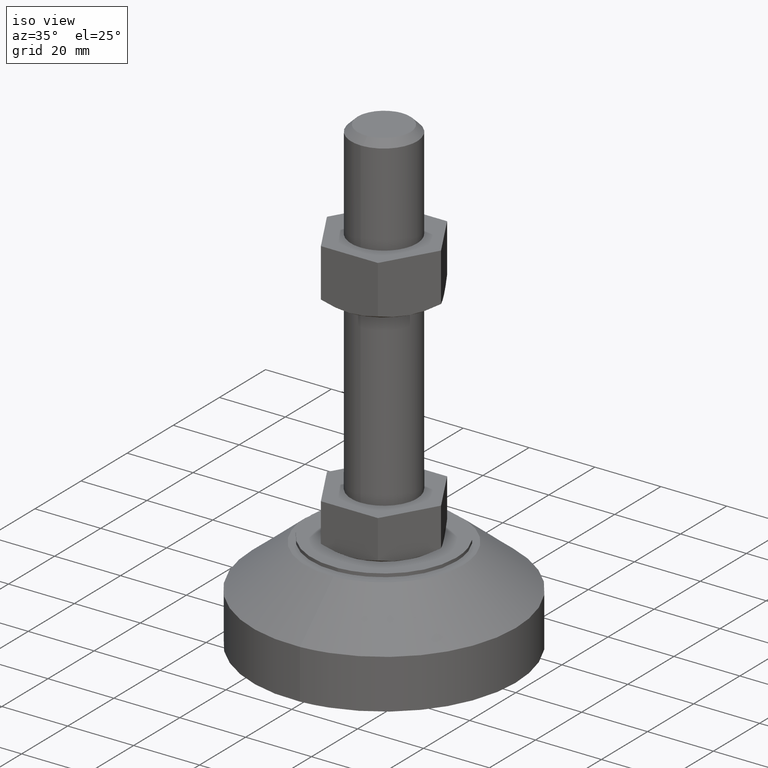
[diagram: clean part render]
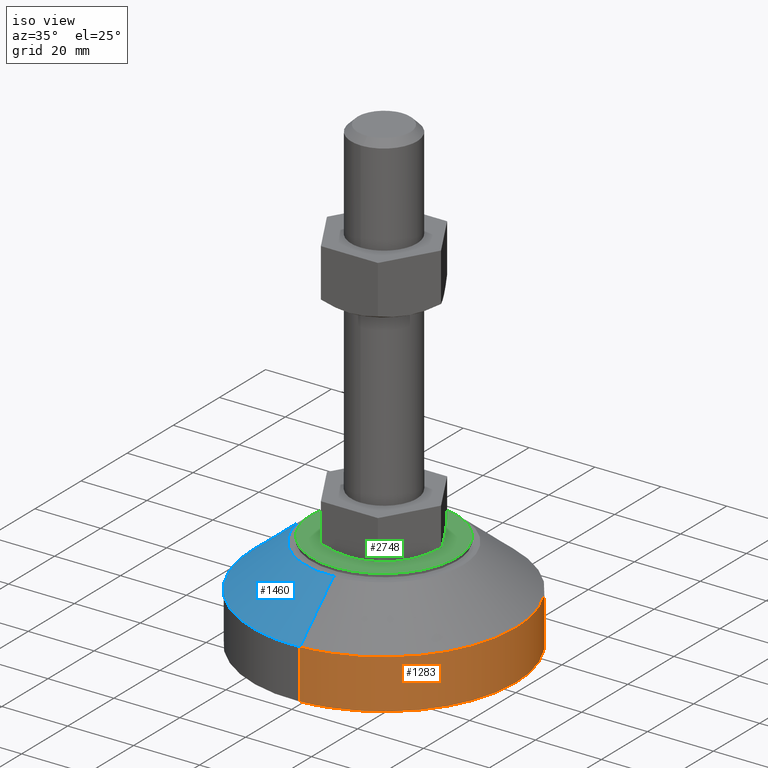
[diagram: same view with three faces highlighted in distinct colors, each labeled with its STEP entity id]
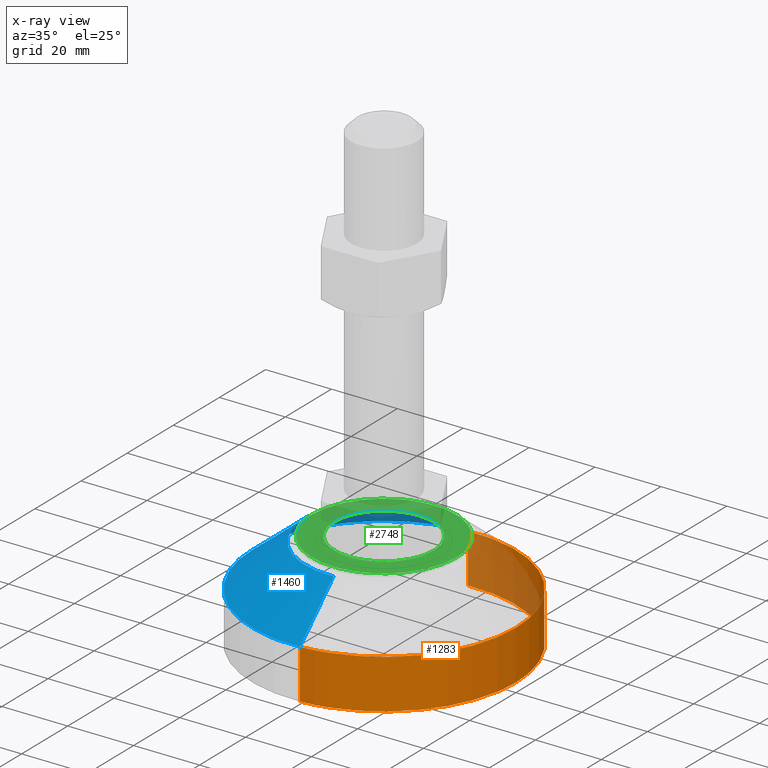
[diagram: x-ray of the same camera — body ghosted, the three highlighted faces saturated]
A machine part, iso view with three faces highlighted in distinct colors.
The next image is the same camera in x-ray (body ghosted, the three faces saturated) — at least one of them is partly hidden behind the body in this view.
Their STEP definitions:

[orange] entity #1283 — the highlighted face is a freeform B-spline surface patch.
#1146=CARTESIAN_POINT('',(-2.441919508004728,39.925393286928767,-8.504308E-014));
#1147=VERTEX_POINT('',#1146);
#1161=CARTESIAN_POINT('',(40.000000000000007,0.0,0.0));
#1162=VERTEX_POINT('',#1161);
#1163=CARTESIAN_POINT('',(-2.441919508004728,39.925393286928767,-8.504308E-014));
#1164=CARTESIAN_POINT('',(-1.222099464303053,39.999999999993989,-8.382098E-014));
#1165=CARTESIAN_POINT('',(3.796339E-013,39.999999999994081,-8.252184E-014));
#1166=CARTESIAN_POINT('',(40.000000000000192,39.999999999997122,-4.000029E-014));
#1167=CARTESIAN_POINT('',(40.000000000000007,0.0,0.0));
#1175=(BOUNDED_CURVE()B_SPLINE_CURVE(2,(#1163,#1164,#1165,#1166,#1167),.UNSPECIFIED.,.F.,.U.)B_SPLINE_CURVE_WITH_KNOTS((3,2,3),(0.239333057637219,0.250000000000000,0.500000000000000),.UNSPECIFIED.)CURVE()GEOMETRIC_REPRESENTATION_ITEM()RATIONAL_B_SPLINE_CURVE((0.976072246123469,0.987502899665870,1.0,0.707106781186548,1.0))REPRESENTATION_ITEM(''));
#1176=EDGE_CURVE('',#1147,#1162,#1175,.T.);
#1178=CARTESIAN_POINT('',(2.441919508004760,-39.925393286928767,-8.593126E-014));
#1179=VERTEX_POINT('',#1178);
#1180=CARTESIAN_POINT('',(40.000000000000007,0.0,0.0));
#1181=CARTESIAN_POINT('',(39.999999999999815,-37.628263518478377,-4.296563E-014));
#1182=CARTESIAN_POINT('',(2.441919508004760,-39.925393286928767,-8.593126E-014));
#1190=(BOUNDED_CURVE()B_SPLINE_CURVE(2,(#1180,#1181,#1182),.UNSPECIFIED.,.F.,.U.)B_SPLINE_CURVE_WITH_KNOTS((3,3),(0.500000000000000,0.739333057637219),.UNSPECIFIED.)CURVE()GEOMETRIC_REPRESENTATION_ITEM()RATIONAL_B_SPLINE_CURVE((1.0,0.719603881520678,0.976072246123469))REPRESENTATION_ITEM(''));
#1191=EDGE_CURVE('',#1162,#1179,#1190,.T.);
#1217=CARTESIAN_POINT('',(-2.441941581394265,39.925391936874668,15.375000000000000));
#1218=CARTESIAN_POINT('',(37.483450355480407,42.367333518268957,15.375000000000002));
#1219=CARTESIAN_POINT('',(39.925391936874682,2.441941581394279,15.375000000000000));
#1220=CARTESIAN_POINT('',(42.367333518268971,-37.483450355480386,15.375000000000002));
#1221=CARTESIAN_POINT('',(2.441941581394294,-39.925391936874668,15.375000000000000));
#1222=CARTESIAN_POINT('',(-2.441941581394265,39.925391936874668,-0.384375000000087));
#1223=CARTESIAN_POINT('',(37.483450355480407,42.367333518268957,-0.384375000000087));
#1224=CARTESIAN_POINT('',(39.925391936874682,2.441941581394279,-0.384375000000087));
#1225=CARTESIAN_POINT('',(42.367333518268971,-37.483450355480386,-0.384375000000087));
#1226=CARTESIAN_POINT('',(2.441941581394294,-39.925391936874668,-0.384375000000087));
#1234=(BOUNDED_SURFACE()B_SPLINE_SURFACE(2,1,((#1217,#1222),(#1218,#1223),(#1219,#1224),(#1220,#1225),(#1221,#1226)),.UNSPECIFIED.,.F.,.F.,.U.)B_SPLINE_SURFACE_WITH_KNOTS((3,2,3),(2,2),(0.0,66.274169979695188,132.548339959390400),(0.0,15.759375000000089),.UNSPECIFIED.)GEOMETRIC_REPRESENTATION_ITEM()RATIONAL_B_SPLINE_SURFACE(((1.0,1.0),(0.707106781186548,0.707106781186548),(1.0,1.0),(0.707106781186548,0.707106781186548),(1.0,1.0)))REPRESENTATION_ITEM('')SURFACE());
#1235=CARTESIAN_POINT('',(-2.441941581420718,39.925391936876743,14.999999999994490));
#1236=VERTEX_POINT('',#1235);
#1237=CARTESIAN_POINT('',(-2.441941581420718,39.925391936876743,14.999999999994490));
#1238=CARTESIAN_POINT('',(-2.441919508004728,39.925393286928767,-8.504308E-014));
#1239=QUASI_UNIFORM_CURVE('',1,(#1237,#1238),.UNSPECIFIED.,.F.,.U.);
#1240=EDGE_CURVE('',#1236,#1147,#1239,.T.);
#1241=ORIENTED_EDGE('',*,*,#1240,.F.);
#1242=CARTESIAN_POINT('',(40.000000000000007,0.0,15.0));
#1243=VERTEX_POINT('',#1242);
#1244=CARTESIAN_POINT('',(-2.441941581420719,39.925391936876736,14.999999999994492));
#1245=CARTESIAN_POINT('',(-1.222110531944214,40.000000000005187,14.999999999994570));
#1246=CARTESIAN_POINT('',(2.524779E-011,40.000000000005109,14.999999999994650));
#1247=CARTESIAN_POINT('',(40.000000000012243,40.000000000002473,14.999999999997407));
#1248=CARTESIAN_POINT('',(40.000000000000007,0.0,15.0));
#1256=(BOUNDED_CURVE()B_SPLINE_CURVE(2,(#1244,#1245,#1246,#1247,#1248),.UNSPECIFIED.,.F.,.U.)B_SPLINE_CURVE_WITH_KNOTS((3,2,3),(0.239332962241742,0.250000000000000,0.500000000000000),.UNSPECIFIED.)CURVE()GEOMETRIC_REPRESENTATION_ITEM()RATIONAL_B_SPLINE_CURVE((0.976072041672716,0.987502787903116,1.0,0.707106781186548,1.0))REPRESENTATION_ITEM(''));
#1257=EDGE_CURVE('',#1236,#1243,#1256,.T.);
#1258=ORIENTED_EDGE('',*,*,#1257,.T.);
#1259=CARTESIAN_POINT('',(2.441941581420751,-39.925391936876743,14.999999999994490));
#1260=VERTEX_POINT('',#1259);
#1261=CARTESIAN_POINT('',(40.000000000000007,0.0,15.0));
#1262=CARTESIAN_POINT('',(39.999999999986997,-37.628242676180889,14.999999999997247));
#1263=CARTESIAN_POINT('',(2.441941581420751,-39.925391936876736,14.999999999994492));
#1271=(BOUNDED_CURVE()B_SPLINE_CURVE(2,(#1261,#1262,#1263),.UNSPECIFIED.,.F.,.U.)B_SPLINE_CURVE_WITH_KNOTS((3,3),(0.500000000000000,0.739332962241742),.UNSPECIFIED.)CURVE()GEOMETRIC_REPRESENTATION_ITEM()RATIONAL_B_SPLINE_CURVE((1.0,0.719603993283431,0.976072041672716))REPRESENTATION_ITEM(''));
#1272=EDGE_CURVE('',#1243,#1260,#1271,.T.);
#1273=ORIENTED_EDGE('',*,*,#1272,.T.);
#1274=CARTESIAN_POINT('',(2.441941581420751,-39.925391936876743,14.999999999994490));
#1275=CARTESIAN_POINT('',(2.441919508004760,-39.925393286928767,-8.593126E-014));
#1276=QUASI_UNIFORM_CURVE('',1,(#1274,#1275),.UNSPECIFIED.,.F.,.U.);
#1277=EDGE_CURVE('',#1260,#1179,#1276,.T.);
#1278=ORIENTED_EDGE('',*,*,#1277,.T.);
#1279=ORIENTED_EDGE('',*,*,#1191,.F.);
#1280=ORIENTED_EDGE('',*,*,#1176,.F.);
#1281=EDGE_LOOP('',(#1241,#1258,#1273,#1278,#1279,#1280));
#1282=FACE_OUTER_BOUND('',#1281,.T.);
#1283=ADVANCED_FACE('',(#1282),#1234,.T.);

[blue] entity #1460 — the highlighted face is a freeform B-spline surface patch.
#1235=CARTESIAN_POINT('',(-2.441941581420718,39.925391936876743,14.999999999994490));
#1236=VERTEX_POINT('',#1235);
#1259=CARTESIAN_POINT('',(2.441941581420751,-39.925391936876743,14.999999999994490));
#1260=VERTEX_POINT('',#1259);
#1306=CARTESIAN_POINT('',(-39.999999999999993,0.0,15.0));
#1307=VERTEX_POINT('',#1306);
#1308=CARTESIAN_POINT('',(2.441941581420751,-39.925391936876736,14.999999999994492));
#1309=CARTESIAN_POINT('',(1.222110531944238,-40.000000000005194,14.999999999994570));
#1310=CARTESIAN_POINT('',(-2.523359E-011,-40.000000000005123,14.999999999994660));
#1311=CARTESIAN_POINT('',(-40.000000000012228,-40.000000000002473,14.999999999997407));
#1312=CARTESIAN_POINT('',(-39.999999999999993,0.0,15.0));
#1320=(BOUNDED_CURVE()B_SPLINE_CURVE(2,(#1308,#1309,#1310,#1311,#1312),.UNSPECIFIED.,.F.,.U.)B_SPLINE_CURVE_WITH_KNOTS((3,2,3),(0.739332962241742,0.750000000000000,1.0),.UNSPECIFIED.)CURVE()GEOMETRIC_REPRESENTATION_ITEM()RATIONAL_B_SPLINE_CURVE((0.976072041672716,0.987502787903116,1.0,0.707106781186548,1.0))REPRESENTATION_ITEM(''));
#1321=EDGE_CURVE('',#1260,#1307,#1320,.T.);
#1323=CARTESIAN_POINT('',(-39.999999999999993,0.0,15.0));
#1324=CARTESIAN_POINT('',(-39.999999999986983,37.628242676180889,14.999999999997247));
#1325=CARTESIAN_POINT('',(-2.441941581420719,39.925391936876736,14.999999999994492));
#1333=(BOUNDED_CURVE()B_SPLINE_CURVE(2,(#1323,#1324,#1325),.UNSPECIFIED.,.F.,.U.)B_SPLINE_CURVE_WITH_KNOTS((3,3),(0.0,0.239332962241742),.UNSPECIFIED.)CURVE()GEOMETRIC_REPRESENTATION_ITEM()RATIONAL_B_SPLINE_CURVE((1.0,0.719603993283431,0.976072041672716))REPRESENTATION_ITEM(''));
#1334=EDGE_CURVE('',#1307,#1236,#1333,.T.);
#1358=CARTESIAN_POINT('',(-1.465164948888598,23.955235162128471,27.999999999994159));
#1359=VERTEX_POINT('',#1358);
#1360=CARTESIAN_POINT('',(-1.465164948888598,23.955235162128471,27.999999999994159));
#1361=CARTESIAN_POINT('',(-2.441941581447172,39.925391936878803,14.999999999994101));
#1362=QUASI_UNIFORM_CURVE('',1,(#1360,#1361),.UNSPECIFIED.,.F.,.U.);
#1363=EDGE_CURVE('',#1359,#1236,#1362,.T.);
#1382=CARTESIAN_POINT('',(1.465164948888622,-23.955235162128471,27.999999999994159));
#1383=VERTEX_POINT('',#1382);
#1397=CARTESIAN_POINT('',(1.465164948888622,-23.955235162128471,27.999999999994159));
#1398=CARTESIAN_POINT('',(2.441941581447212,-39.925391936878803,14.999999999994101));
#1399=QUASI_UNIFORM_CURVE('',1,(#1397,#1398),.UNSPECIFIED.,.F.,.U.);
#1400=EDGE_CURVE('',#1383,#1260,#1399,.T.);
#1406=CARTESIAN_POINT('',(1.440745533022616,-23.555981242755681,28.324999999999999));
#1407=CARTESIAN_POINT('',(-22.115235709733064,-24.996726775778285,28.324999999999999));
#1408=CARTESIAN_POINT('',(-23.555981242755671,-1.440745533022602,28.324999999999999));
#1409=CARTESIAN_POINT('',(-24.996726775778267,22.115235709733078,28.324999999999999));
#1410=CARTESIAN_POINT('',(-1.440745533022588,23.555981242755681,28.324999999999999));
#1411=CARTESIAN_POINT('',(2.466971482603597,-40.334627204227829,14.666874999999999));
#1412=CARTESIAN_POINT('',(-37.867655721624232,-42.801598686831412,14.666874999999992));
#1413=CARTESIAN_POINT('',(-40.334627204227807,-2.466971482603583,14.666874999999999));
#1414=CARTESIAN_POINT('',(-42.801598686831397,37.867655721624246,14.666874999999992));
#1415=CARTESIAN_POINT('',(-2.466971482603568,40.334627204227829,14.666874999999999));
#1423=(BOUNDED_SURFACE()B_SPLINE_SURFACE(2,1,((#1406,#1411),(#1407,#1412),(#1408,#1413),(#1409,#1414),(#1410,#1415)),.UNSPECIFIED.,.F.,.F.,.U.)B_SPLINE_SURFACE_WITH_KNOTS((3,2,3),(2,2),(0.0,66.953480221987405,133.906960443974810),(0.0,21.659189239573220),.UNSPECIFIED.)GEOMETRIC_REPRESENTATION_ITEM()RATIONAL_B_SPLINE_SURFACE(((1.0,1.0),(0.707106781186548,0.707106781186548),(1.0,1.0),(0.707106781186548,0.707106781186548),(1.0,1.0)))REPRESENTATION_ITEM('')SURFACE());
#1424=ORIENTED_EDGE('',*,*,#1334,.F.);
#1425=ORIENTED_EDGE('',*,*,#1321,.F.);
#1426=ORIENTED_EDGE('',*,*,#1400,.F.);
#1427=CARTESIAN_POINT('',(-23.999999999999641,0.0,28.0));
#1428=VERTEX_POINT('',#1427);
#1429=CARTESIAN_POINT('',(1.465164948888622,-23.955235162128471,27.999999999994163));
#1430=CARTESIAN_POINT('',(0.733266319192457,-24.000000000006715,27.999999999994241));
#1431=CARTESIAN_POINT('',(4.462115E-013,-24.000000000006601,27.999999999994330));
#1432=CARTESIAN_POINT('',(-23.999999999999435,-24.000000000003027,27.999999999997254));
#1433=CARTESIAN_POINT('',(-23.999999999999641,0.0,28.0));
#1441=(BOUNDED_CURVE()B_SPLINE_CURVE(2,(#1429,#1430,#1431,#1432,#1433),.UNSPECIFIED.,.F.,.U.)B_SPLINE_CURVE_WITH_KNOTS((3,2,3),(0.739332962241597,0.750000000000000,1.0),.UNSPECIFIED.)CURVE()GEOMETRIC_REPRESENTATION_ITEM()RATIONAL_B_SPLINE_CURVE((0.976072041672405,0.987502787902946,1.0,0.707106781186548,1.0))REPRESENTATION_ITEM(''));
#1442=EDGE_CURVE('',#1383,#1428,#1441,.T.);
#1443=ORIENTED_EDGE('',*,*,#1442,.T.);
#1444=CARTESIAN_POINT('',(-23.999999999999641,0.0,28.0));
#1445=CARTESIAN_POINT('',(-23.999999999999858,22.576945605691183,27.999999999997083));
#1446=CARTESIAN_POINT('',(-1.465164948888598,23.955235162128460,27.999999999994156));
#1454=(BOUNDED_CURVE()B_SPLINE_CURVE(2,(#1444,#1445,#1446),.UNSPECIFIED.,.F.,.U.)B_SPLINE_CURVE_WITH_KNOTS((3,3),(0.0,0.239332962241596),.UNSPECIFIED.)CURVE()GEOMETRIC_REPRESENTATION_ITEM()RATIONAL_B_SPLINE_CURVE((1.0,0.719603993283601,0.976072041672405))REPRESENTATION_ITEM(''));
#1455=EDGE_CURVE('',#1428,#1359,#1454,.T.);
#1456=ORIENTED_EDGE('',*,*,#1455,.T.);
#1457=ORIENTED_EDGE('',*,*,#1363,.T.);
#1458=EDGE_LOOP('',(#1424,#1425,#1426,#1443,#1456,#1457));
#1459=FACE_OUTER_BOUND('',#1458,.T.);
#1460=ADVANCED_FACE('',(#1459),#1423,.T.);

[green] entity #2748 — the highlighted face is a freeform B-spline surface patch.
#2090=CARTESIAN_POINT('',(-1.343040437906148,21.958967243051148,29.500000000000000));
#2091=VERTEX_POINT('',#2090);
#2097=CARTESIAN_POINT('',(22.000000000000011,0.0,29.500000000000000));
#2098=VERTEX_POINT('',#2097);
#2099=CARTESIAN_POINT('',(-1.343040437906147,21.958967243051156,29.500000000000004));
#2100=CARTESIAN_POINT('',(-0.672147038180742,21.999999999983107,29.499999999999996));
#2101=CARTESIAN_POINT('',(1.030760E-012,21.999999999983370,29.500000000000000));
#2102=CARTESIAN_POINT('',(22.000000000000512,21.999999999991942,29.499999999999996));
#2103=CARTESIAN_POINT('',(22.000000000000011,0.0,29.500000000000000));
#2111=(BOUNDED_CURVE()B_SPLINE_CURVE(2,(#2099,#2100,#2101,#2102,#2103),.UNSPECIFIED.,.F.,.U.)B_SPLINE_CURVE_WITH_KNOTS((3,2,3),(0.239333177793117,0.250000000000000,0.500000000000000),.UNSPECIFIED.)CURVE()GEOMETRIC_REPRESENTATION_ITEM()RATIONAL_B_SPLINE_CURVE((0.976072503640782,0.987503040437261,1.0,0.707106781186548,1.0))REPRESENTATION_ITEM(''));
#2112=EDGE_CURVE('',#2091,#2098,#2111,.T.);
#2114=CARTESIAN_POINT('',(1.343040437906173,-21.958967243051148,29.500000000000000));
#2115=VERTEX_POINT('',#2114);
#2116=CARTESIAN_POINT('',(22.000000000000011,0.0,29.500000000000000));
#2117=CARTESIAN_POINT('',(21.999999999999496,-20.695559373781986,29.499999999999996));
#2118=CARTESIAN_POINT('',(1.343040437906173,-21.958967243051156,29.500000000000004));
#2126=(BOUNDED_CURVE()B_SPLINE_CURVE(2,(#2116,#2117,#2118),.UNSPECIFIED.,.F.,.U.)B_SPLINE_CURVE_WITH_KNOTS((3,3),(0.500000000000000,0.739333177793117),.UNSPECIFIED.)CURVE()GEOMETRIC_REPRESENTATION_ITEM()RATIONAL_B_SPLINE_CURVE((1.0,0.719603740749286,0.976072503640782))REPRESENTATION_ITEM(''));
#2127=EDGE_CURVE('',#2098,#2115,#2126,.T.);
#2159=CARTESIAN_POINT('',(-21.999999999999989,0.0,29.500000000000000));
#2160=VERTEX_POINT('',#2159);
#2161=CARTESIAN_POINT('',(1.343040437906173,-21.958967243051156,29.500000000000004));
#2162=CARTESIAN_POINT('',(0.672147038180769,-21.999999999983107,29.499999999999996));
#2163=CARTESIAN_POINT('',(-1.002338E-012,-21.999999999983370,29.500000000000000));
#2164=CARTESIAN_POINT('',(-22.000000000000473,-21.999999999991942,29.499999999999996));
#2165=CARTESIAN_POINT('',(-21.999999999999989,0.0,29.500000000000000));
#2173=(BOUNDED_CURVE()B_SPLINE_CURVE(2,(#2161,#2162,#2163,#2164,#2165),.UNSPECIFIED.,.F.,.U.)B_SPLINE_CURVE_WITH_KNOTS((3,2,3),(0.739333177793117,0.750000000000000,1.0),.UNSPECIFIED.)CURVE()GEOMETRIC_REPRESENTATION_ITEM()RATIONAL_B_SPLINE_CURVE((0.976072503640782,0.987503040437261,1.0,0.707106781186548,1.0))REPRESENTATION_ITEM(''));
#2174=EDGE_CURVE('',#2115,#2160,#2173,.T.);
#2176=CARTESIAN_POINT('',(-21.999999999999989,0.0,29.500000000000000));
#2177=CARTESIAN_POINT('',(-21.999999999999464,20.695559373781986,29.499999999999996));
#2178=CARTESIAN_POINT('',(-1.343040437906147,21.958967243051156,29.500000000000004));
#2186=(BOUNDED_CURVE()B_SPLINE_CURVE(2,(#2176,#2177,#2178),.UNSPECIFIED.,.F.,.U.)B_SPLINE_CURVE_WITH_KNOTS((3,3),(0.0,0.239333177793117),.UNSPECIFIED.)CURVE()GEOMETRIC_REPRESENTATION_ITEM()RATIONAL_B_SPLINE_CURVE((1.0,0.719603740749286,0.976072503640782))REPRESENTATION_ITEM(''));
#2187=EDGE_CURVE('',#2160,#2091,#2186,.T.);
#2256=CARTESIAN_POINT('',(12.990381056766219,7.499999999999711,29.500000000000000));
#2257=VERTEX_POINT('',#2256);
#2309=CARTESIAN_POINT('',(1.421085E-014,15.0,29.500000000000000));
#2310=VERTEX_POINT('',#2309);
#2359=CARTESIAN_POINT('',(-12.990381056767021,7.500000000000309,29.500000000000000));
#2360=VERTEX_POINT('',#2359);
#2406=CARTESIAN_POINT('',(-12.990381056766960,-7.500000000000200,29.500000000000000));
#2407=VERTEX_POINT('',#2406);
#2453=CARTESIAN_POINT('',(1.421085E-014,-15.0,29.500000000000000));
#2454=VERTEX_POINT('',#2453);
#2501=CARTESIAN_POINT('',(12.990381056766060,-7.499999999999750,29.500000000000000));
#2502=VERTEX_POINT('',#2501);
#2553=CARTESIAN_POINT('',(1.421085E-014,15.0,29.500000000000000));
#2554=CARTESIAN_POINT('',(8.660254037865082,15.000000000035755,29.500000000000000));
#2555=CARTESIAN_POINT('',(12.990381056797590,7.500000000017822,29.500000000000000));
#2563=(BOUNDED_CURVE()B_SPLINE_CURVE(2,(#2553,#2554,#2555),.UNSPECIFIED.,.F.,.U.)CURVE()GEOMETRIC_REPRESENTATION_ITEM()QUASI_UNIFORM_CURVE()RATIONAL_B_SPLINE_CURVE((1.0,0.866025403784438,1.0))REPRESENTATION_ITEM(''));
#2564=EDGE_CURVE('',#2310,#2257,#2563,.T.);
#2585=CARTESIAN_POINT('',(-12.990381056767021,7.500000000000309,29.500000000000000));
#2586=CARTESIAN_POINT('',(-8.660254037864986,15.000000000035751,29.500000000000004));
#2587=CARTESIAN_POINT('',(1.421085E-014,15.000000000035749,29.500000000000000));
#2595=(BOUNDED_CURVE()B_SPLINE_CURVE(2,(#2585,#2586,#2587),.UNSPECIFIED.,.F.,.U.)CURVE()GEOMETRIC_REPRESENTATION_ITEM()QUASI_UNIFORM_CURVE()RATIONAL_B_SPLINE_CURVE((1.0,0.866025403784439,1.0))REPRESENTATION_ITEM(''));
#2596=EDGE_CURVE('',#2360,#2310,#2595,.T.);
#2616=CARTESIAN_POINT('',(-12.990381056766960,-7.500000000000200,29.500000000000000));
#2617=CARTESIAN_POINT('',(-17.320508075730050,3.556183E-014,29.500000000000000));
#2618=CARTESIAN_POINT('',(-12.990381056797510,7.500000000017909,29.500000000000000));
#2626=(BOUNDED_CURVE()B_SPLINE_CURVE(2,(#2616,#2617,#2618),.UNSPECIFIED.,.F.,.U.)CURVE()GEOMETRIC_REPRESENTATION_ITEM()QUASI_UNIFORM_CURVE()RATIONAL_B_SPLINE_CURVE((1.0,0.866025403784438,1.0))REPRESENTATION_ITEM(''));
#2627=EDGE_CURVE('',#2407,#2360,#2626,.T.);
#2648=CARTESIAN_POINT('',(1.421085E-014,-15.0,29.500000000000000));
#2649=CARTESIAN_POINT('',(-8.660254037865025,-15.000000000035755,29.499999999999996));
#2650=CARTESIAN_POINT('',(-12.990381056797540,-7.500000000017858,29.500000000000000));
#2658=(BOUNDED_CURVE()B_SPLINE_CURVE(2,(#2648,#2649,#2650),.UNSPECIFIED.,.F.,.U.)CURVE()GEOMETRIC_REPRESENTATION_ITEM()QUASI_UNIFORM_CURVE()RATIONAL_B_SPLINE_CURVE((1.0,0.866025403784438,1.0))REPRESENTATION_ITEM(''));
#2659=EDGE_CURVE('',#2454,#2407,#2658,.T.);
#2681=CARTESIAN_POINT('',(12.990381056766219,7.499999999999711,29.500000000000000));
#2682=CARTESIAN_POINT('',(17.320508075730064,-6.158268E-014,29.499999999999996));
#2683=CARTESIAN_POINT('',(12.990381056797530,-7.500000000017916,29.500000000000000));
#2691=(BOUNDED_CURVE()B_SPLINE_CURVE(2,(#2681,#2682,#2683),.UNSPECIFIED.,.F.,.U.)CURVE()GEOMETRIC_REPRESENTATION_ITEM()QUASI_UNIFORM_CURVE()RATIONAL_B_SPLINE_CURVE((1.0,0.866025403784439,1.0))REPRESENTATION_ITEM(''));
#2692=EDGE_CURVE('',#2257,#2502,#2691,.T.);
#2712=CARTESIAN_POINT('',(12.990381056766060,-7.499999999999750,29.500000000000000));
#2713=CARTESIAN_POINT('',(8.660254037865007,-15.000000000035749,29.500000000000000));
#2714=CARTESIAN_POINT('',(1.421085E-014,-15.000000000035749,29.500000000000000));
#2722=(BOUNDED_CURVE()B_SPLINE_CURVE(2,(#2712,#2713,#2714),.UNSPECIFIED.,.F.,.U.)CURVE()GEOMETRIC_REPRESENTATION_ITEM()QUASI_UNIFORM_CURVE()RATIONAL_B_SPLINE_CURVE((1.0,0.866025403784439,1.0))REPRESENTATION_ITEM(''));
#2723=EDGE_CURVE('',#2502,#2454,#2722,.T.);
#2729=CARTESIAN_POINT('',(24.197799914719479,-24.197258520802180,29.500000000000000));
#2730=CARTESIAN_POINT('',(-24.197801094891410,-24.197258520802180,29.500000000000000));
#2731=CARTESIAN_POINT('',(24.197799914719479,24.197257734020869,29.500000000000000));
#2732=CARTESIAN_POINT('',(-24.197801094891410,24.197257734020869,29.500000000000000));
#2733=B_SPLINE_SURFACE_WITH_KNOTS('',1,1,((#2729,#2731),(#2730,#2732)),.UNSPECIFIED.,.F.,.F.,.U.,(2,2),(2,2),(0.0,48.395601009610893),(0.0,48.394516254823060),.UNSPECIFIED.);
#2734=ORIENTED_EDGE('',*,*,#2174,.F.);
#2735=ORIENTED_EDGE('',*,*,#2127,.F.);
#2736=ORIENTED_EDGE('',*,*,#2112,.F.);
#2737=ORIENTED_EDGE('',*,*,#2187,.F.);
#2738=EDGE_LOOP('',(#2734,#2735,#2736,#2737));
#2739=FACE_OUTER_BOUND('',#2738,.T.);
#2740=ORIENTED_EDGE('',*,*,#2564,.T.);
#2741=ORIENTED_EDGE('',*,*,#2692,.T.);
#2742=ORIENTED_EDGE('',*,*,#2723,.T.);
#2743=ORIENTED_EDGE('',*,*,#2659,.T.);
#2744=ORIENTED_EDGE('',*,*,#2627,.T.);
#2745=ORIENTED_EDGE('',*,*,#2596,.T.);
#2746=EDGE_LOOP('',(#2740,#2741,#2742,#2743,#2744,#2745));
#2747=FACE_BOUND('',#2746,.T.);
#2748=ADVANCED_FACE('',(#2739,#2747),#2733,.F.);